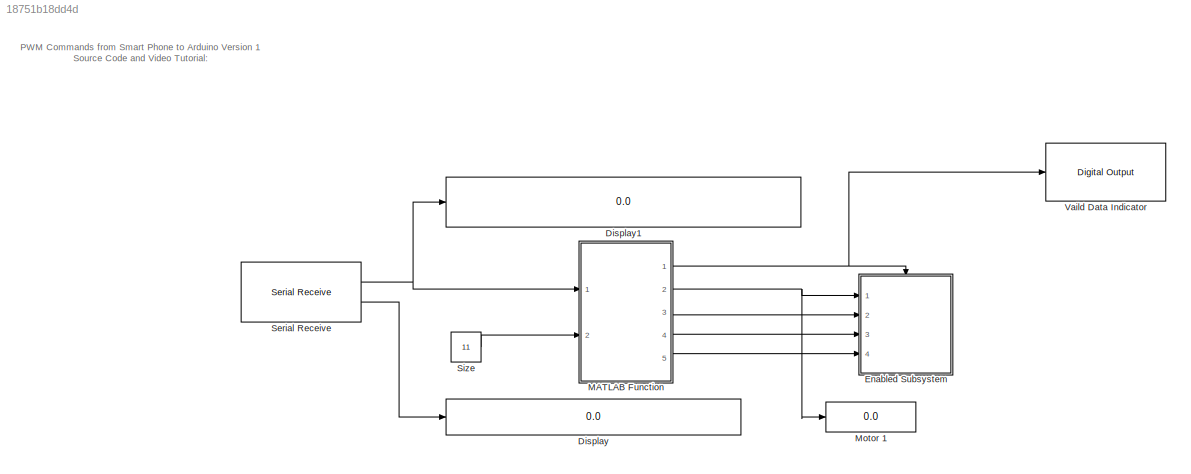
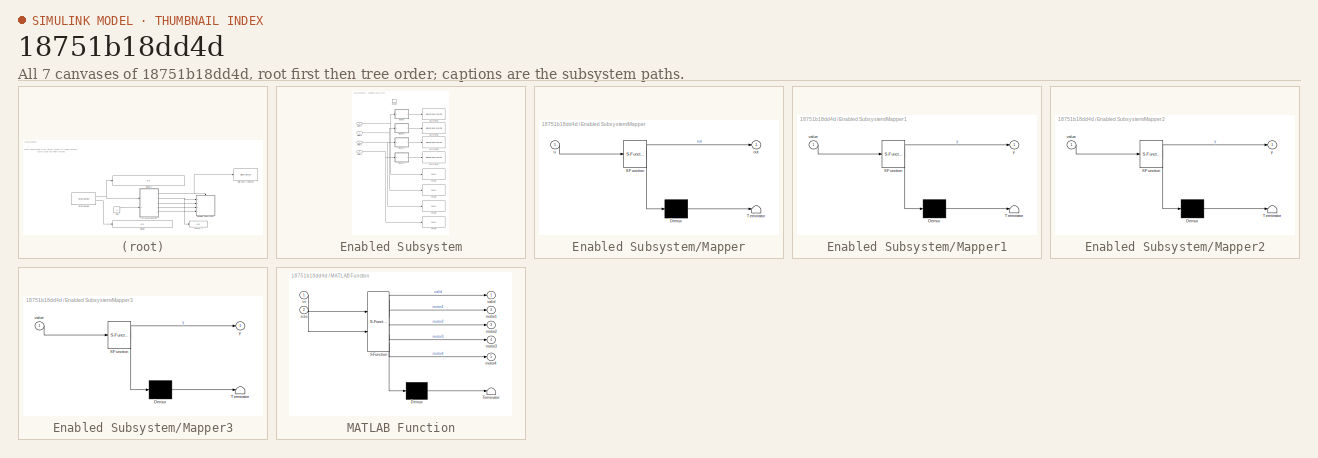
[diagram: thumbnail index - all 7 canvases of the model, root first then tree order]
MODEL slx_18751b18dd4d
KIND model
CONFIG AbsTol = auto
CONFIG EnableMultiTasking = on
CONFIG FixedStep = auto
CONFIG MaxStep = auto
CONFIG MinStep = auto
CONFIG RelTol = 1e-3
CONFIG SampleTimeConstraint = Unconstrained
CONFIG SolverName = ode45
CONFIG StartTime = 0.0
CONFIG StopTime = 10.0
BLOCK [Display] Display
  Decimation = 1
  Ports = [1]
BLOCK [Display] Display1
  Decimation = 1
  Ports = [1]
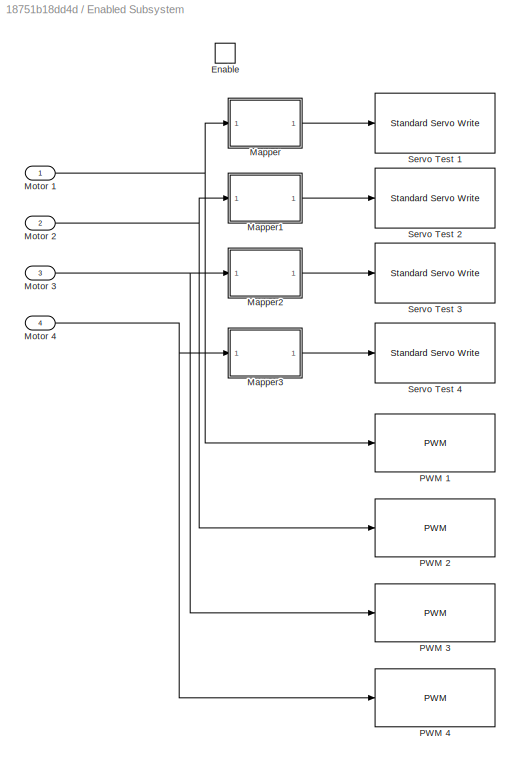
BLOCK [SubSystem] Enabled Subsystem
  Ports = [4, 0, 1]
  RequestExecContextInheritance = off
  TreatAsAtomicUnit = on
BLOCK [EnablePort] Enabled Subsystem/Enable
  Ports = [0, 1]
  ShowOutputPort = on
  StatesWhenEnabling = reset
BLOCK [SubSystem] Enabled Subsystem/Mapper
  ErrorFcn = Stateflow.Translate.translate
  PermitHierarchicalResolution = ExplicitOnly
  Ports = [1, 1]
  RequestExecContextInheritance = off
  SFBlockType = MATLAB Function
  TreatAsAtomicUnit = on
BLOCK [Demux] Enabled Subsystem/Mapper/ Demux 
  Outputs = 1
  Ports = [1, 1]
BLOCK [S-Function] Enabled Subsystem/Mapper/ SFunction 
  EnableBusSupport = off
  FunctionName = sf_sfun
  PortCounts = [1 2]
  Ports = [1, 2]
  SFcnIsStateOwnerBlock = off
  SFunctionDeploymentMode = off
  Tag = Stateflow S-Function 1
BLOCK [Terminator] Enabled Subsystem/Mapper/ Terminator 
BLOCK [Outport] Enabled Subsystem/Mapper/out
BLOCK [Inport] Enabled Subsystem/Mapper/u
BLOCK [SubSystem] Enabled Subsystem/Mapper1
  ErrorFcn = Stateflow.Translate.translate
  PermitHierarchicalResolution = ExplicitOnly
  Ports = [1, 1]
  RequestExecContextInheritance = off
  SFBlockType = MATLAB Function
  TreatAsAtomicUnit = on
BLOCK [Demux] Enabled Subsystem/Mapper1/ Demux 
  Outputs = 1
  Ports = [1, 1]
BLOCK [S-Function] Enabled Subsystem/Mapper1/ SFunction 
  EnableBusSupport = off
  FunctionName = sf_sfun
  PortCounts = [1 2]
  Ports = [1, 2]
  SFcnIsStateOwnerBlock = off
  SFunctionDeploymentMode = off
  Tag = Stateflow S-Function 3
BLOCK [Terminator] Enabled Subsystem/Mapper1/ Terminator 
BLOCK [Inport] Enabled Subsystem/Mapper1/value
BLOCK [Outport] Enabled Subsystem/Mapper1/y
BLOCK [SubSystem] Enabled Subsystem/Mapper2
  ErrorFcn = Stateflow.Translate.translate
  PermitHierarchicalResolution = ExplicitOnly
  Ports = [1, 1]
  RequestExecContextInheritance = off
  SFBlockType = MATLAB Function
  TreatAsAtomicUnit = on
BLOCK [Demux] Enabled Subsystem/Mapper2/ Demux 
  Outputs = 1
  Ports = [1, 1]
BLOCK [S-Function] Enabled Subsystem/Mapper2/ SFunction 
  EnableBusSupport = off
  FunctionName = sf_sfun
  PortCounts = [1 2]
  Ports = [1, 2]
  SFcnIsStateOwnerBlock = off
  SFunctionDeploymentMode = off
  Tag = Stateflow S-Function 4
BLOCK [Terminator] Enabled Subsystem/Mapper2/ Terminator 
BLOCK [Inport] Enabled Subsystem/Mapper2/value
BLOCK [Outport] Enabled Subsystem/Mapper2/y
BLOCK [SubSystem] Enabled Subsystem/Mapper3
  ErrorFcn = Stateflow.Translate.translate
  PermitHierarchicalResolution = ExplicitOnly
  Ports = [1, 1]
  RequestExecContextInheritance = off
  SFBlockType = MATLAB Function
  TreatAsAtomicUnit = on
BLOCK [Demux] Enabled Subsystem/Mapper3/ Demux 
  Outputs = 1
  Ports = [1, 1]
BLOCK [S-Function] Enabled Subsystem/Mapper3/ SFunction 
  EnableBusSupport = off
  FunctionName = sf_sfun
  PortCounts = [1 2]
  Ports = [1, 2]
  SFcnIsStateOwnerBlock = off
  SFunctionDeploymentMode = off
  Tag = Stateflow S-Function 5
BLOCK [Terminator] Enabled Subsystem/Mapper3/ Terminator 
BLOCK [Inport] Enabled Subsystem/Mapper3/value
BLOCK [Outport] Enabled Subsystem/Mapper3/y
BLOCK [Inport] Enabled Subsystem/Motor 1
BLOCK [Inport] Enabled Subsystem/Motor 2
  Port = 2
BLOCK [Inport] Enabled Subsystem/Motor 3
  Port = 3
BLOCK [Inport] Enabled Subsystem/Motor 4
  Port = 4
BLOCK [Reference] Enabled Subsystem/PWM 1  REF=arduinolib/PWM
  Commented = on
  Ports = [1]
  SourceBlock = arduinolib/PWM
  SourceProductBaseCode = ARDUINO
  SourceType = Arduino PWM
BLOCK [Reference] Enabled Subsystem/PWM 2  REF=arduinolib/PWM
  Commented = on
  Ports = [1]
  SourceBlock = arduinolib/PWM
  SourceProductBaseCode = ARDUINO
  SourceType = Arduino PWM
BLOCK [Reference] Enabled Subsystem/PWM 3  REF=arduinolib/PWM
  Commented = on
  Ports = [1]
  SourceBlock = arduinolib/PWM
  SourceProductBaseCode = ARDUINO
  SourceType = Arduino PWM
BLOCK [Reference] Enabled Subsystem/PWM 4  REF=arduinolib/PWM
  Commented = on
  Ports = [1]
  SourceBlock = arduinolib/PWM
  SourceProductBaseCode = ARDUINO
  SourceType = Arduino PWM
BLOCK [Reference] Enabled Subsystem/Servo Test 1  REF=arduinolib/Standard Servo Write
  Ports = [1]
  SourceBlock = arduinolib/Standard Servo Write
  SourceProductBaseCode = ARDUINO
  SourceType = Arduino Standard Servo Write
BLOCK [Reference] Enabled Subsystem/Servo Test 2  REF=arduinolib/Standard Servo Write
  Ports = [1]
  SourceBlock = arduinolib/Standard Servo Write
  SourceProductBaseCode = ARDUINO
  SourceType = Arduino Standard Servo Write
BLOCK [Reference] Enabled Subsystem/Servo Test 3  REF=arduinolib/Standard Servo Write
  Ports = [1]
  SourceBlock = arduinolib/Standard Servo Write
  SourceProductBaseCode = ARDUINO
  SourceType = Arduino Standard Servo Write
BLOCK [Reference] Enabled Subsystem/Servo Test 4  REF=arduinolib/Standard Servo Write
  Ports = [1]
  SourceBlock = arduinolib/Standard Servo Write
  SourceProductBaseCode = ARDUINO
  SourceType = Arduino Standard Servo Write
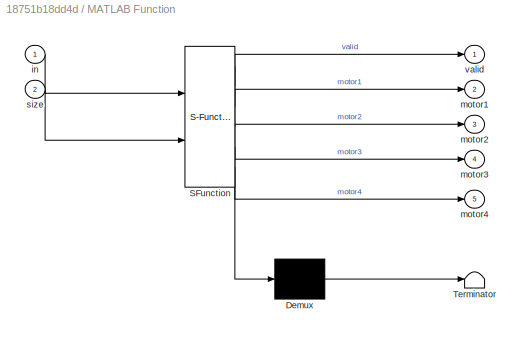
BLOCK [SubSystem] MATLAB Function
  ErrorFcn = Stateflow.Translate.translate
  PermitHierarchicalResolution = ExplicitOnly
  Ports = [2, 5]
  RequestExecContextInheritance = off
  SFBlockType = MATLAB Function
  TreatAsAtomicUnit = on
BLOCK [Demux] MATLAB Function/ Demux 
  Outputs = 1
  Ports = [1, 1]
BLOCK [S-Function] MATLAB Function/ SFunction 
  EnableBusSupport = off
  FunctionName = sf_sfun
  PortCounts = [2 6]
  Ports = [2, 6]
  SFcnIsStateOwnerBlock = off
  SFunctionDeploymentMode = off
  Tag = Stateflow S-Function 2
BLOCK [Terminator] MATLAB Function/ Terminator 
BLOCK [Inport] MATLAB Function/in
BLOCK [Outport] MATLAB Function/motor1
  Port = 2
BLOCK [Outport] MATLAB Function/motor2
  Port = 3
BLOCK [Outport] MATLAB Function/motor3
  Port = 4
BLOCK [Outport] MATLAB Function/motor4
  Port = 5
BLOCK [Inport] MATLAB Function/size
  Port = 2
BLOCK [Outport] MATLAB Function/valid
BLOCK [Display] Motor 1
  Decimation = 1
  Ports = [1]
BLOCK [Reference] Serial Receive  REF=arduinolib/Serial Receive
  Ports = [0, 2]
  SourceBlock = arduinolib/Serial Receive
  SourceProductBaseCode = ARDUINO
  SourceType = Arduino Serial Receive
BLOCK [Constant] Size
  OutDataTypeStr = uint8
  Value = 11
BLOCK [Reference] Vaild Data Indicator  REF=arduinolib/Digital Output
  Ports = [1]
  SourceBlock = arduinolib/Digital Output
  SourceProductBaseCode = ARDUINO
  SourceType = Arduino Digital Output
ANNOTATION (root): PWM Commands from Smart Phone to Arduino Version 1 Source Code and Video Tutorial:
LINE Enabled Subsystem/Mapper1:1 -> Enabled Subsystem/Servo Test 2:1
LINE Enabled Subsystem/Mapper2:1 -> Enabled Subsystem/Servo Test 3:1
LINE Enabled Subsystem/Mapper3:1 -> Enabled Subsystem/Servo Test 4:1
LINE Enabled Subsystem/Mapper:1 -> Enabled Subsystem/Servo Test 1:1
NET Enabled Subsystem/Motor 1:1 -> Enabled Subsystem/Mapper:1, Enabled Subsystem/PWM 1:1
NET Enabled Subsystem/Motor 2:1 -> Enabled Subsystem/Mapper1:1, Enabled Subsystem/PWM 2:1
NET Enabled Subsystem/Motor 3:1 -> Enabled Subsystem/Mapper2:1, Enabled Subsystem/PWM 3:1
NET Enabled Subsystem/Motor 4:1 -> Enabled Subsystem/Mapper3:1, Enabled Subsystem/PWM 4:1
NET MATLAB Function:1 -> Enabled Subsystem:enable, Vaild Data Indicator:1
NET MATLAB Function:2 -> Enabled Subsystem:1, Motor 1:1
LINE MATLAB Function:3 -> Enabled Subsystem:2
LINE MATLAB Function:4 -> Enabled Subsystem:3
LINE MATLAB Function:5 -> Enabled Subsystem:4
NET Serial Receive:1 -> Display1:1, MATLAB Function:1
LINE Serial Receive:2 -> Display:1
LINE Size:1 -> MATLAB Function:2
note: NET lines group one-source signal fan-out (src -> all destinations, sorted); 1:1 wires keep LINE
CHART Enabled
Subsystem/Mapper states=1 transitions=1
  STATE_LABEL 'eML_blk_kernel()'
  STATE_LABEL "SCRIPT:\nfunction out= mapper(u)\nvalue = cast(u,'single');\nfromLow = 0;\nfromHigh = 255;\ntoLow = 20;\ntoHigh = 160;\ny = (value - fromLow) .* (toHigh - toLow) ./ (fromHigh - fromLow) + toLow;\nout = cast(y,'uint8');\nend\n"
CHART MATLAB Function states=1 transitions=1
  STATE_LABEL 'eML_blk_kernel()'
  STATE_LABEL 'SCRIPT:\nfunction [valid,motor1,motor2,motor3,motor4] = dataCheck(in,size)\nif(in(1) == 68 && in(2) == 65 && in(3) == 84 && in(4) == 65 && in(size) == 11)\n    valid = true;\n    motor1 = in(5);\n    motor2 = in(6);\n    motor3 = in(7);\n    motor4 = in(8);\nelse \n    valid = false;\n    motor1 = uint8(0);\n    motor2 = uint8(0);\n    motor3 = uint8(0);\n    motor4 = uint8(0);\nend\n\nend\n\n'
CHART Enabled
Subsystem/Mapper1 states=1 transitions=1
  STATE_LABEL 'eML_blk_kernel()'
  STATE_LABEL 'SCRIPT:\nfunction y = mapper(value)\nfromLow = 0;\nfromHigh = 255;\ntoLow = 20;\ntoHigh = 160;\ny = (value - fromLow) .* (toHigh - toLow) ./ (fromHigh - fromLow) + toLow;\nend\n'
CHART Enabled
Subsystem/Mapper2 states=1 transitions=1
  STATE_LABEL 'eML_blk_kernel()'
  STATE_LABEL 'SCRIPT:\nfunction y = mapper(value)\nfromLow = 0;\nfromHigh = 255;\ntoLow = 20;\ntoHigh = 160;\ny = (value - fromLow) .* (toHigh - toLow) ./ (fromHigh - fromLow) + toLow;\nend\n'
CHART Enabled
Subsystem/Mapper3 states=1 transitions=1
  STATE_LABEL 'eML_blk_kernel()'
  STATE_LABEL 'SCRIPT:\nfunction y = mapper(value)\nfromLow = 0;\nfromHigh = 255;\ntoLow = 20;\ntoHigh = 160;\ny = (value - fromLow) .* (toHigh - toLow) ./ (fromHigh - fromLow) + toLow;\nend\n'
CHART  states=0 transitions=0
CHART  states=0 transitions=0
CHART  states=0 transitions=0
CHART  states=0 transitions=0
CHART  states=0 transitions=0
